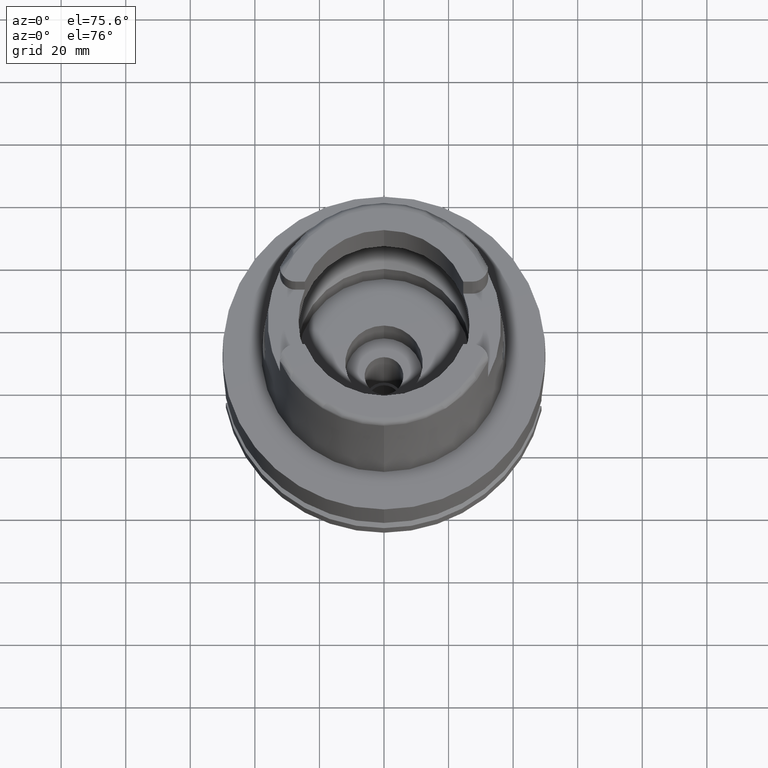
[diagram: clean part render]
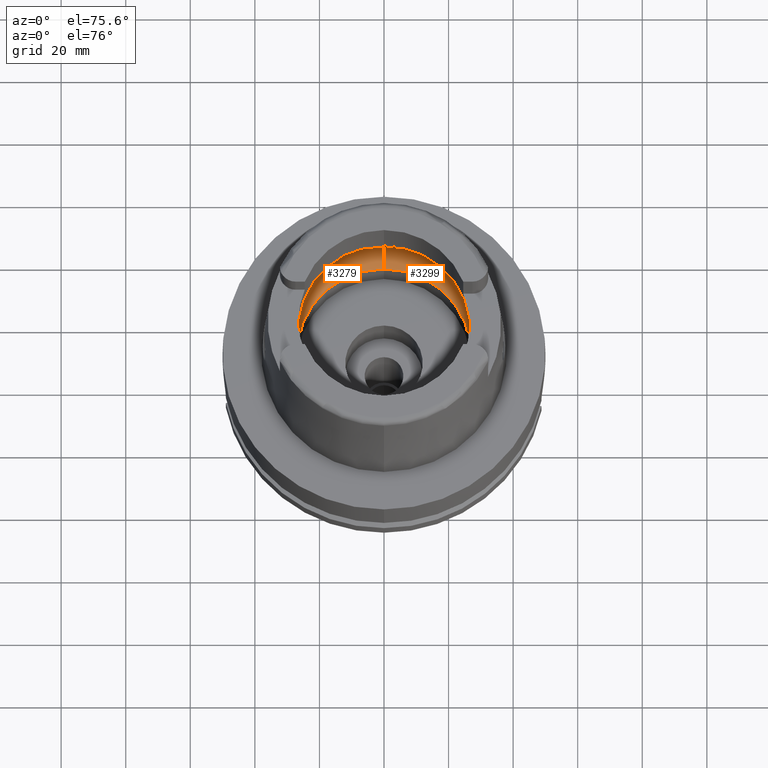
[diagram: same view with one multi-face feature highlighted, each face labeled with its STEP entity id]
A machine part, auxiliary view. The highlighted faces form ONE feature: a constant-radius fillet chain: 2 tangent blend faces with common blend radius 12 mm. The faces share edges in the B-rep.
Their STEP definitions:
[1] entity #3299 (Torus):
#742=CARTESIAN_POINT('',(0.E0,-1.95E1,9.496624327026E0));
#743=DIRECTION('',(-1.E0,0.E0,0.E0));
#744=DIRECTION('',(0.E0,-6.166666666667E-1,-7.872243785746E-1));
#745=AXIS2_PLACEMENT_3D('',#742,#743,#744);
#758=CARTESIAN_POINT('',(3.148971910754E1,0.E0,9.E0));
#759=CARTESIAN_POINT('',(3.148971910754E1,-2.740816369241E-1,9.E0));
#760=CARTESIAN_POINT('',(3.148416657244E1,-8.216274657312E-1,9.037606582852E0));
#761=CARTESIAN_POINT('',(3.145843229729E1,-1.626122314408E0,9.205188491873E0));
#762=CARTESIAN_POINT('',(3.142817542026E1,-2.140654635827E0,9.388263020288E0));
#763=CARTESIAN_POINT('',(3.140918884336E1,-2.390158196044E0,9.496624327026E0));
#768=CARTESIAN_POINT('',(0.E0,0.E0,9.496624327026E0));
#769=DIRECTION('',(0.E0,0.E0,-1.E0));
#770=DIRECTION('',(9.971171061384E-1,-7.587803796965E-2,0.E0));
#771=AXIS2_PLACEMENT_3D('',#768,#769,#770);
#776=CARTESIAN_POINT('',(0.E0,0.E0,4.993178413035E-2));
#777=DIRECTION('',(0.E0,0.E0,1.E0));
#778=DIRECTION('',(0.E0,-1.E0,0.E0));
#779=AXIS2_PLACEMENT_3D('',#776,#777,#778);
#784=CARTESIAN_POINT('',(0.E0,1.95E1,9.496624327026E0));
#785=DIRECTION('',(1.E0,0.E0,0.E0));
#786=DIRECTION('',(0.E0,6.166666666667E-1,-7.872243785746E-1));
#787=AXIS2_PLACEMENT_3D('',#784,#785,#786);
#792=CARTESIAN_POINT('',(0.E0,0.E0,9.496624327026E0));
#793=DIRECTION('',(0.E0,0.E0,-1.E0));
#794=DIRECTION('',(0.E0,1.E0,0.E0));
#795=AXIS2_PLACEMENT_3D('',#792,#793,#794);
#800=CARTESIAN_POINT('',(3.140918884336E1,2.390158196044E0,9.496624327026E0));
#801=CARTESIAN_POINT('',(3.142817530553E1,2.140656143518E0,9.388263675090E0));
#802=CARTESIAN_POINT('',(3.145843215351E1,1.626125992770E0,9.205189397203E0));
#803=CARTESIAN_POINT('',(3.148416663622E1,8.216256622720E-1,9.037606172252E0));
#804=CARTESIAN_POINT('',(3.148971910754E1,2.740808193430E-1,9.E0));
#805=CARTESIAN_POINT('',(3.148971910754E1,0.E0,9.E0));
#824=CARTESIAN_POINT('',(3.140918884336E1,-2.390158196044E0,9.496624327026E0));
#855=CARTESIAN_POINT('',(3.140918884336E1,2.390158196044E0,9.496624327026E0));
#2536=VERTEX_POINT('',#824);
#2538=VERTEX_POINT('',#855);
#2539=CARTESIAN_POINT('',(0.E0,3.15E1,9.496624327026E0));
#2540=VERTEX_POINT('',#2539);
#2541=CARTESIAN_POINT('',(0.E0,-3.15E1,9.496624327026E0));
#2542=VERTEX_POINT('',#2541);
#2547=VERTEX_POINT('',#758);
#2549=CARTESIAN_POINT('',(0.E0,2.69E1,4.993178413035E-2));
#2550=VERTEX_POINT('',#2549);
#2551=CARTESIAN_POINT('',(0.E0,-2.69E1,4.993178413035E-2));
#2552=VERTEX_POINT('',#2551);
#3280=CARTESIAN_POINT('',(0.E0,0.E0,9.496624327026E0));
#3281=DIRECTION('',(0.E0,0.E0,1.E0));
#3282=DIRECTION('',(0.E0,1.E0,0.E0));
#3283=AXIS2_PLACEMENT_3D('',#3280,#3281,#3282);
#3284=TOROIDAL_SURFACE('',#3283,1.95E1,1.2E1);
#3286=ORIENTED_EDGE('',*,*,#3285,.T.);
#3288=ORIENTED_EDGE('',*,*,#3287,.T.);
#3289=ORIENTED_EDGE('',*,*,#3274,.F.);
#3291=ORIENTED_EDGE('',*,*,#3290,.T.);
#3292=ORIENTED_EDGE('',*,*,#3270,.T.);
#3294=ORIENTED_EDGE('',*,*,#3293,.T.);
#3296=ORIENTED_EDGE('',*,*,#3295,.T.);
#3297=EDGE_LOOP('',(#3286,#3288,#3289,#3291,#3292,#3294,#3296));
#3298=FACE_OUTER_BOUND('',#3297,.F.);
#746=CIRCLE('',#745,1.2E1);
#764=B_SPLINE_CURVE_WITH_KNOTS('',3,(#758,#759,#760,#761,#762,#763),
.UNSPECIFIED.,.F.,.F.,(4,1,1,4),(0.E0,3.333333333333E-1,6.666666666667E-1,1.E0),
.UNSPECIFIED.);
#772=CIRCLE('',#771,3.15E1);
#780=CIRCLE('',#779,2.69E1);
#788=CIRCLE('',#787,1.2E1);
#796=CIRCLE('',#795,3.15E1);
#806=B_SPLINE_CURVE_WITH_KNOTS('',3,(#800,#801,#802,#803,#804,#805),
.UNSPECIFIED.,.F.,.F.,(4,1,1,4),(0.E0,3.333333333333E-1,6.666666666667E-1,1.E0),
.UNSPECIFIED.);
#3270=EDGE_CURVE('',#2550,#2540,#788,.T.);
#3274=EDGE_CURVE('',#2552,#2542,#746,.T.);
#3285=EDGE_CURVE('',#2547,#2536,#764,.T.);
#3287=EDGE_CURVE('',#2536,#2542,#772,.T.);
#3290=EDGE_CURVE('',#2552,#2550,#780,.T.);
#3293=EDGE_CURVE('',#2540,#2538,#796,.T.);
#3295=EDGE_CURVE('',#2538,#2547,#806,.T.);
#3299=ADVANCED_FACE('',(#3298),#3284,.F.);
[2] entity #3279 (Torus):
#674=CARTESIAN_POINT('',(-3.140918884336E1,2.390158196044E0,9.496624327026E0));
#706=CARTESIAN_POINT('',(-3.140918884336E1,-2.390158196044E0,9.496624327026E0));
#707=CARTESIAN_POINT('',(-3.142817545704E1,-2.140654152533E0,9.388262810390E0));
#708=CARTESIAN_POINT('',(-3.145843235401E1,-1.626121130666E0,9.205188134635E0));
#709=CARTESIAN_POINT('',(-3.148416659375E1,-8.216262390445E-1,
9.037606438216E0));
#710=CARTESIAN_POINT('',(-3.148971910754E1,-2.740811097498E-1,9.E0));
#711=CARTESIAN_POINT('',(-3.148971910754E1,0.E0,9.E0));
#716=CARTESIAN_POINT('',(-3.148971910754E1,0.E0,9.E0));
#717=CARTESIAN_POINT('',(-3.148971910754E1,2.740813517952E-1,9.E0));
#718=CARTESIAN_POINT('',(-3.148416661469E1,8.216269012394E-1,9.037606318337E0));
#719=CARTESIAN_POINT('',(-3.145843209623E1,1.626127188331E0,9.205189758010E0));
#720=CARTESIAN_POINT('',(-3.142817526839E1,2.140656631637E0,9.388263887083E0));
#721=CARTESIAN_POINT('',(-3.140918884336E1,2.390158196044E0,9.496624327026E0));
#726=CARTESIAN_POINT('',(0.E0,0.E0,9.496624327026E0));
#727=DIRECTION('',(0.E0,0.E0,-1.E0));
#728=DIRECTION('',(-9.971171061384E-1,7.587803796965E-2,0.E0));
#729=AXIS2_PLACEMENT_3D('',#726,#727,#728);
#734=CARTESIAN_POINT('',(0.E0,0.E0,4.993178413035E-2));
#735=DIRECTION('',(0.E0,0.E0,1.E0));
#736=DIRECTION('',(0.E0,1.E0,0.E0));
#737=AXIS2_PLACEMENT_3D('',#734,#735,#736);
#742=CARTESIAN_POINT('',(0.E0,-1.95E1,9.496624327026E0));
#743=DIRECTION('',(-1.E0,0.E0,0.E0));
#744=DIRECTION('',(0.E0,-6.166666666667E-1,-7.872243785746E-1));
#745=AXIS2_PLACEMENT_3D('',#742,#743,#744);
#750=CARTESIAN_POINT('',(0.E0,0.E0,9.496624327026E0));
#751=DIRECTION('',(0.E0,0.E0,-1.E0));
#752=DIRECTION('',(0.E0,-1.E0,0.E0));
#753=AXIS2_PLACEMENT_3D('',#750,#751,#752);
#784=CARTESIAN_POINT('',(0.E0,1.95E1,9.496624327026E0));
#785=DIRECTION('',(1.E0,0.E0,0.E0));
#786=DIRECTION('',(0.E0,6.166666666667E-1,-7.872243785746E-1));
#787=AXIS2_PLACEMENT_3D('',#784,#785,#786);
#2539=CARTESIAN_POINT('',(0.E0,3.15E1,9.496624327026E0));
#2540=VERTEX_POINT('',#2539);
#2541=CARTESIAN_POINT('',(0.E0,-3.15E1,9.496624327026E0));
#2542=VERTEX_POINT('',#2541);
#2543=CARTESIAN_POINT('',(-3.148971910754E1,0.E0,9.E0));
#2544=VERTEX_POINT('',#2543);
#2545=VERTEX_POINT('',#706);
#2548=VERTEX_POINT('',#674);
#2549=CARTESIAN_POINT('',(0.E0,2.69E1,4.993178413035E-2));
#2550=VERTEX_POINT('',#2549);
#2551=CARTESIAN_POINT('',(0.E0,-2.69E1,4.993178413035E-2));
#2552=VERTEX_POINT('',#2551);
#3262=CARTESIAN_POINT('',(0.E0,0.E0,9.496624327026E0));
#3263=DIRECTION('',(0.E0,0.E0,1.E0));
#3264=DIRECTION('',(0.E0,1.E0,0.E0));
#3265=AXIS2_PLACEMENT_3D('',#3262,#3263,#3264);
#3266=TOROIDAL_SURFACE('',#3265,1.95E1,1.2E1);
#3267=ORIENTED_EDGE('',*,*,#3240,.T.);
#3268=ORIENTED_EDGE('',*,*,#3256,.T.);
#3269=ORIENTED_EDGE('',*,*,#3225,.T.);
#3271=ORIENTED_EDGE('',*,*,#3270,.F.);
#3273=ORIENTED_EDGE('',*,*,#3272,.T.);
#3275=ORIENTED_EDGE('',*,*,#3274,.T.);
#3276=ORIENTED_EDGE('',*,*,#3218,.T.);
#3277=EDGE_LOOP('',(#3267,#3268,#3269,#3271,#3273,#3275,#3276));
#3278=FACE_OUTER_BOUND('',#3277,.F.);
#712=B_SPLINE_CURVE_WITH_KNOTS('',3,(#706,#707,#708,#709,#710,#711),
.UNSPECIFIED.,.F.,.F.,(4,1,1,4),(0.E0,3.333333333333E-1,6.666666666667E-1,1.E0),
.UNSPECIFIED.);
#722=B_SPLINE_CURVE_WITH_KNOTS('',3,(#716,#717,#718,#719,#720,#721),
.UNSPECIFIED.,.F.,.F.,(4,1,1,4),(0.E0,3.333333333333E-1,6.666666666667E-1,1.E0),
.UNSPECIFIED.);
#730=CIRCLE('',#729,3.15E1);
#738=CIRCLE('',#737,2.69E1);
#746=CIRCLE('',#745,1.2E1);
#754=CIRCLE('',#753,3.15E1);
#788=CIRCLE('',#787,1.2E1);
#3218=EDGE_CURVE('',#2542,#2545,#754,.T.);
#3225=EDGE_CURVE('',#2548,#2540,#730,.T.);
#3240=EDGE_CURVE('',#2545,#2544,#712,.T.);
#3256=EDGE_CURVE('',#2544,#2548,#722,.T.);
#3270=EDGE_CURVE('',#2550,#2540,#788,.T.);
#3272=EDGE_CURVE('',#2550,#2552,#738,.T.);
#3274=EDGE_CURVE('',#2552,#2542,#746,.T.);
#3279=ADVANCED_FACE('',(#3278),#3266,.F.);